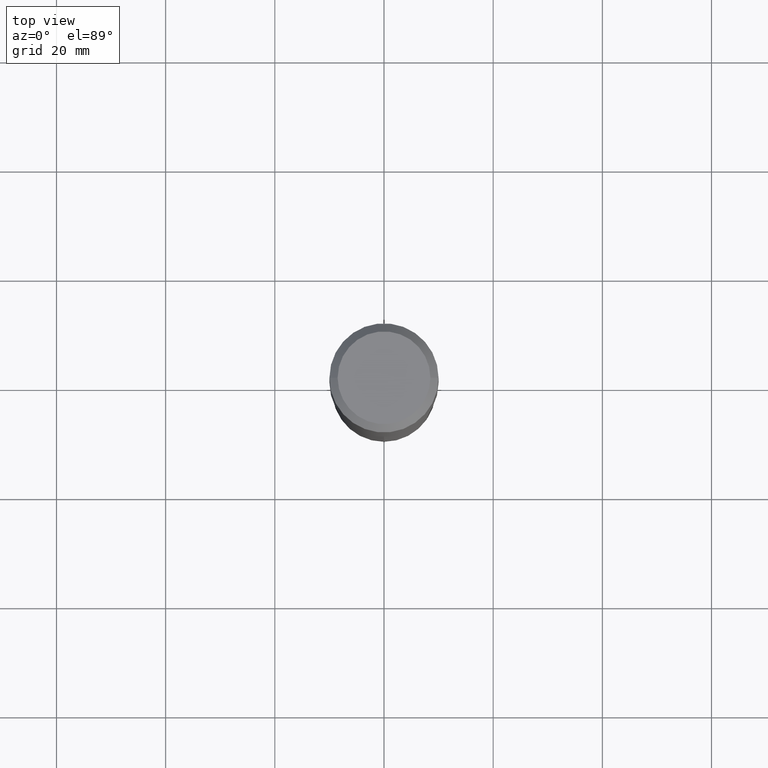
[diagram: clean part render]
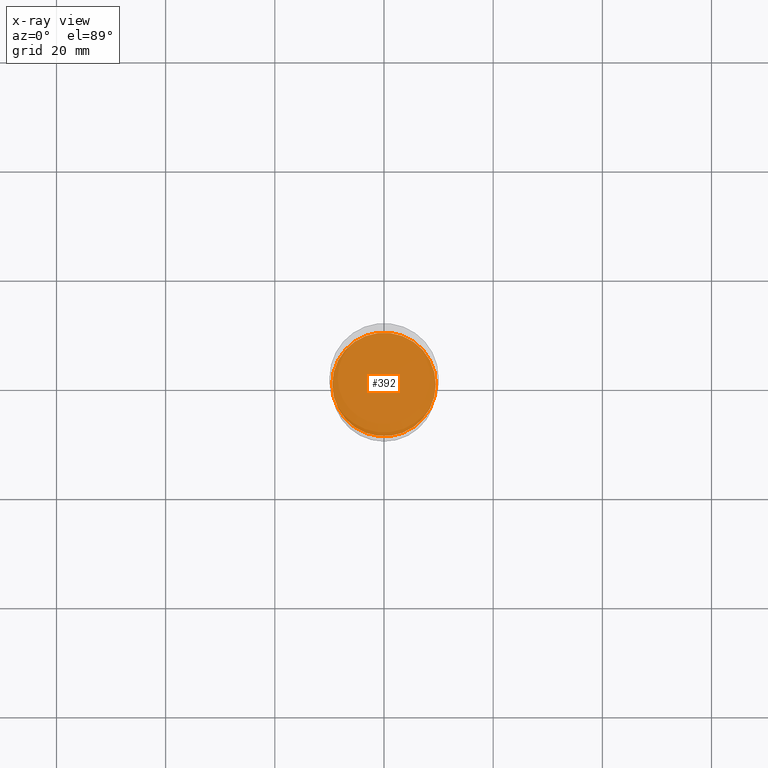
[diagram: x-ray — body ghosted, one internal face saturated and labeled with its STEP entity id]
A machine part, top view, then the same camera in x-ray: the body is ghosted and one INTERNAL B-rep face — a face not visible from any outside direction — is saturated and labeled: STEP entity #392.
In plain terms, the highlighted planar face has unit normal (-0, 0, 1).
Its self-contained STEP definition (entity closure, byte-faithful):
#9 = DIRECTION ( 'NONE',  ( -2.438088387897960049E-29, 3.491481338843145188E-15, 1.000000000000000000 ) ) ;
#12 = AXIS2_PLACEMENT_3D ( 'NONE', #210, #248, #400 ) ;
#15 = EDGE_LOOP ( 'NONE', ( #159, #377 ) ) ;
#19 = EDGE_CURVE ( 'NONE', #313, #237, #464, .T. ) ;
#23 = CARTESIAN_POINT ( 'NONE',  ( 6.835818953929312828E-29, -9.759737786468245182E-15, -2.795300000000000118 ) ) ;
#51 = PLANE ( 'NONE',  #114 ) ;
#65 = CARTESIAN_POINT ( 'NONE',  ( 6.835818953929312828E-29, -9.759737786468245182E-15, -2.795300000000000118 ) ) ;
#90 = CIRCLE ( 'NONE', #12, 0.3735000000000000542 ) ;
#104 = AXIS2_PLACEMENT_3D ( 'NONE', #65, #359, #142 ) ;
#114 = AXIS2_PLACEMENT_3D ( 'NONE', #23, #9, #308 ) ;
#115 = EDGE_CURVE ( 'NONE', #237, #313, #90, .T. ) ;
#142 = DIRECTION ( 'NONE',  ( 1.000000000000000000, -6.982962677686265922E-15, 0.000000000000000000 ) ) ;
#159 = ORIENTED_EDGE ( 'NONE', *, *, #19, .F. ) ;
#170 = CARTESIAN_POINT ( 'NONE',  ( 0.3735000000000000542, -1.236787434658406618E-14, -2.795300000000000118 ) ) ;
#210 = CARTESIAN_POINT ( 'NONE',  ( 6.835818953929312828E-29, -9.759737786468245182E-15, -2.795300000000000118 ) ) ;
#237 = VERTEX_POINT ( 'NONE', #370 ) ;
#248 = DIRECTION ( 'NONE',  ( -2.445468806185136597E-29, 3.491481338843145583E-15, 1.000000000000000000 ) ) ;
#308 = DIRECTION ( 'NONE',  ( 1.000000000000000000, -6.982962677686265922E-15, 4.876176775795935793E-29 ) ) ;
#313 = VERTEX_POINT ( 'NONE', #170 ) ;
#359 = DIRECTION ( 'NONE',  ( -2.445468806185136597E-29, 3.491481338843145583E-15, 1.000000000000000000 ) ) ;
#363 = FACE_OUTER_BOUND ( 'NONE', #15, .T. ) ;
#370 = CARTESIAN_POINT ( 'NONE',  ( -0.3735000000000000542, -7.103211441230159402E-15, -2.795300000000000118 ) ) ;
#377 = ORIENTED_EDGE ( 'NONE', *, *, #115, .F. ) ;
#392 = ADVANCED_FACE ( 'NONE', ( #363 ), #51, .F. ) ;
#400 = DIRECTION ( 'NONE',  ( 1.000000000000000000, -6.982962677686265922E-15, 0.000000000000000000 ) ) ;
#464 = CIRCLE ( 'NONE', #104, 0.3735000000000000542 ) ;